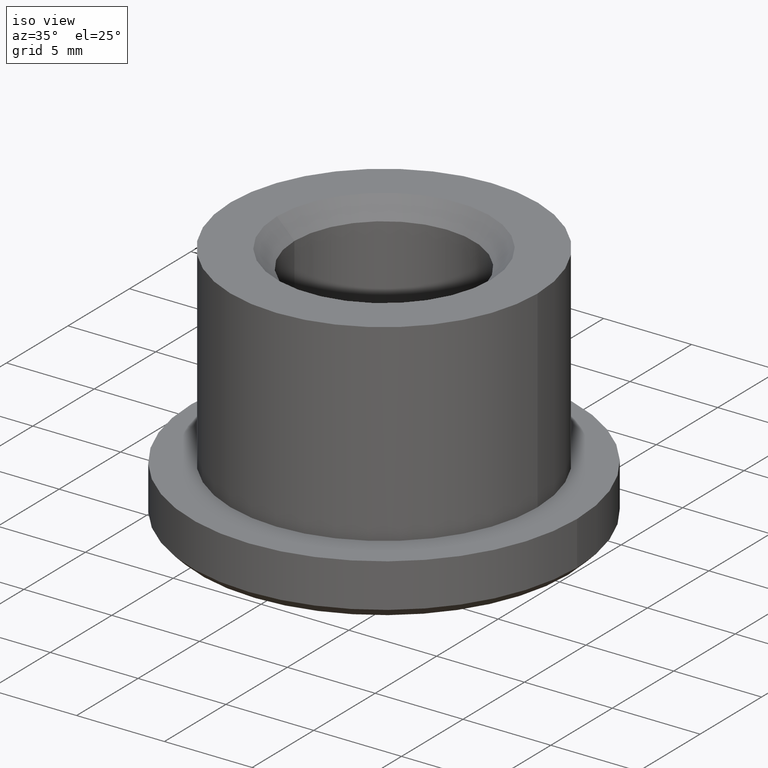
[diagram: clean part render]
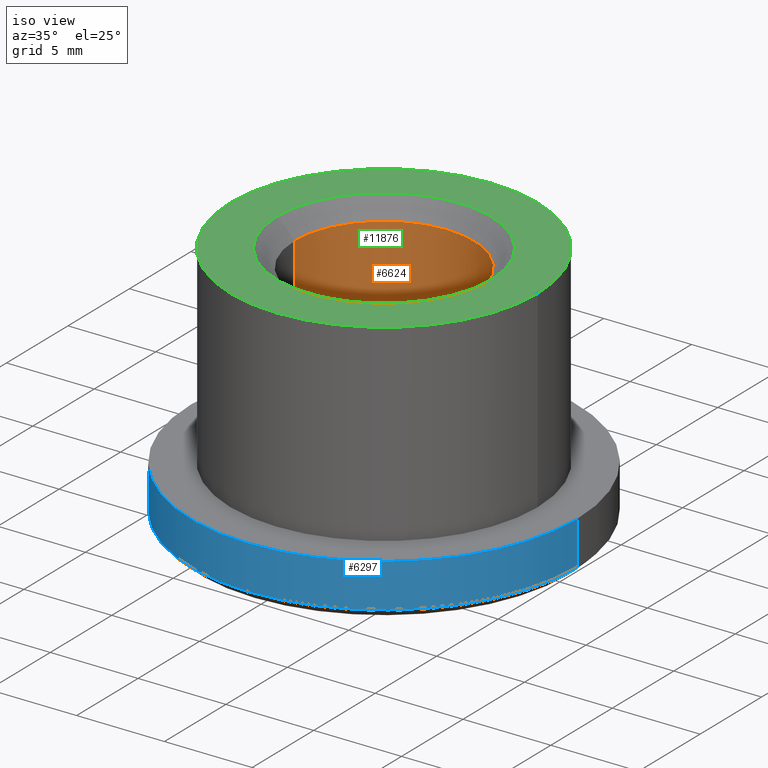
[diagram: same view with three faces highlighted in distinct colors, each labeled with its STEP entity id]
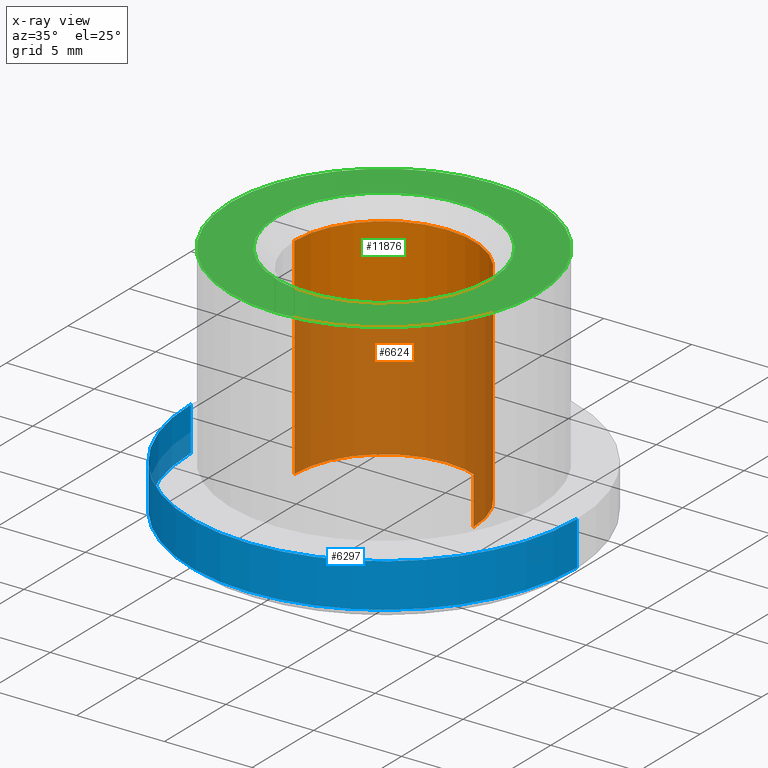
[diagram: x-ray of the same camera — body ghosted, the three highlighted faces saturated]
A machine part, iso view with three faces highlighted in distinct colors.
The next image is the same camera in x-ray (body ghosted, the three faces saturated) — at least one of them is partly hidden behind the body in this view.
Their STEP definitions:

[orange] entity #6624 — the highlighted cylindrical surface (partial cylindrical patch) has radius 5.1 mm, axis along (-0, -0, 1).
#8 = AXIS2_PLACEMENT_3D ( 'NONE', #3379, #6499, #9631 ) ;
#418 = VECTOR ( 'NONE', #11229, 1000.000000000000000 ) ;
#954 = DIRECTION ( 'NONE',  ( 1.000000000000000000, 0.000000000000000000, 0.000000000000000000 ) ) ;
#1050 = AXIS2_PLACEMENT_3D ( 'NONE', #2015, #5959, #9140 ) ;
#1787 = VERTEX_POINT ( 'NONE', #6089 ) ;
#1820 = EDGE_CURVE ( 'NONE', #5583, #11426, #6846, .T. ) ;
#2015 = CARTESIAN_POINT ( 'NONE',  ( 0.000000000000000000, 0.000000000000000000, 6.000000000000015099 ) ) ;
#3190 = CARTESIAN_POINT ( 'NONE',  ( -5.099999999999991651, 6.245698675651490978E-16, 7.000000000000000000 ) ) ;
#3254 = ORIENTED_EDGE ( 'NONE', *, *, #9899, .T. ) ;
#3379 = CARTESIAN_POINT ( 'NONE',  ( 0.000000000000000000, 0.000000000000000000, 7.000000000000000000 ) ) ;
#3734 = VERTEX_POINT ( 'NONE', #5579 ) ;
#3759 = AXIS2_PLACEMENT_3D ( 'NONE', #6178, #7118, #954 ) ;
#4044 = DIRECTION ( 'NONE',  ( -0.000000000000000000, -0.000000000000000000, 1.000000000000000000 ) ) ;
#5579 = CARTESIAN_POINT ( 'NONE',  ( 5.099999999999991651, 0.000000000000000000, -5.999999999999993783 ) ) ;
#5583 = VERTEX_POINT ( 'NONE', #12726 ) ;
#5784 = EDGE_CURVE ( 'NONE', #1787, #3734, #10315, .T. ) ;
#5959 = DIRECTION ( 'NONE',  ( 0.000000000000000000, 0.000000000000000000, 1.000000000000000000 ) ) ;
#6089 = CARTESIAN_POINT ( 'NONE',  ( -5.099999999999991651, 6.245698675651490978E-16, -5.999999999999993783 ) ) ;
#6178 = CARTESIAN_POINT ( 'NONE',  ( 0.000000000000000000, 0.000000000000000000, -5.999999999999993783 ) ) ;
#6464 = CYLINDRICAL_SURFACE ( 'NONE', #8, 5.099999999999991651 ) ;
#6499 = DIRECTION ( 'NONE',  ( -0.000000000000000000, -0.000000000000000000, 1.000000000000000000 ) ) ;
#6624 = ADVANCED_FACE ( 'NONE', ( #9822 ), #6464, .F. ) ;
#6846 = CIRCLE ( 'NONE', #1050, 5.099999999999991651 ) ;
#7052 = EDGE_CURVE ( 'NONE', #1787, #11426, #7261, .T. ) ;
#7118 = DIRECTION ( 'NONE',  ( -0.000000000000000000, -0.000000000000000000, -1.000000000000000000 ) ) ;
#7230 = EDGE_LOOP ( 'NONE', ( #12730, #13189, #3254, #8813 ) ) ;
#7261 = LINE ( 'NONE', #3190, #8074 ) ;
#8074 = VECTOR ( 'NONE', #4044, 1000.000000000000000 ) ;
#8813 = ORIENTED_EDGE ( 'NONE', *, *, #1820, .T. ) ;
#9140 = DIRECTION ( 'NONE',  ( -1.000000000000000000, 0.000000000000000000, 0.000000000000000000 ) ) ;
#9252 = CARTESIAN_POINT ( 'NONE',  ( -5.099999999999991651, 6.245698675651490978E-16, 6.000000000000015099 ) ) ;
#9631 = DIRECTION ( 'NONE',  ( 1.000000000000000000, 0.000000000000000000, 0.000000000000000000 ) ) ;
#9822 = FACE_OUTER_BOUND ( 'NONE', #7230, .T. ) ;
#9899 = EDGE_CURVE ( 'NONE', #3734, #5583, #12210, .T. ) ;
#10209 = CARTESIAN_POINT ( 'NONE',  ( 5.099999999999991651, 0.000000000000000000, 7.000000000000000000 ) ) ;
#10315 = CIRCLE ( 'NONE', #3759, 5.099999999999991651 ) ;
#11229 = DIRECTION ( 'NONE',  ( -0.000000000000000000, -0.000000000000000000, 1.000000000000000000 ) ) ;
#11426 = VERTEX_POINT ( 'NONE', #9252 ) ;
#12210 = LINE ( 'NONE', #10209, #418 ) ;
#12726 = CARTESIAN_POINT ( 'NONE',  ( 5.099999999999991651, 0.000000000000000000, 6.000000000000015099 ) ) ;
#12730 = ORIENTED_EDGE ( 'NONE', *, *, #7052, .F. ) ;
#13189 = ORIENTED_EDGE ( 'NONE', *, *, #5784, .T. ) ;

[blue] entity #6297 — the highlighted cylindrical surface (partial cylindrical patch) has radius 11 mm, axis along (-0, -0, 1).
#979 = VERTEX_POINT ( 'NONE', #8013 ) ;
#1070 = LINE ( 'NONE', #3976, #10554 ) ;
#1074 = DIRECTION ( 'NONE',  ( -0.000000000000000000, -0.000000000000000000, 1.000000000000000000 ) ) ;
#1107 = EDGE_CURVE ( 'NONE', #1610, #11785, #1070, .T. ) ;
#1194 = DIRECTION ( 'NONE',  ( 1.000000000000000000, 0.000000000000000000, 0.000000000000000000 ) ) ;
#1381 = CIRCLE ( 'NONE', #9742, 11.00000000000000000 ) ;
#1610 = VERTEX_POINT ( 'NONE', #7614 ) ;
#2309 = FACE_OUTER_BOUND ( 'NONE', #9588, .T. ) ;
#2647 = DIRECTION ( 'NONE',  ( -0.000000000000000000, -0.000000000000000000, 1.000000000000000000 ) ) ;
#2879 = ORIENTED_EDGE ( 'NONE', *, *, #12598, .T. ) ;
#3012 = VECTOR ( 'NONE', #7815, 1000.000000000000000 ) ;
#3133 = AXIS2_PLACEMENT_3D ( 'NONE', #7235, #1074, #12331 ) ;
#3328 = AXIS2_PLACEMENT_3D ( 'NONE', #7404, #8263, #1194 ) ;
#3972 = ORIENTED_EDGE ( 'NONE', *, *, #1107, .F. ) ;
#3976 = CARTESIAN_POINT ( 'NONE',  ( -11.00000000000000000, 1.347111479062088405E-15, 7.000000000000000000 ) ) ;
#5129 = ORIENTED_EDGE ( 'NONE', *, *, #11976, .T. ) ;
#6075 = DIRECTION ( 'NONE',  ( -0.000000000000000000, -0.000000000000000000, 1.000000000000000000 ) ) ;
#6291 = ORIENTED_EDGE ( 'NONE', *, *, #8864, .F. ) ;
#6297 = ADVANCED_FACE ( 'NONE', ( #2309 ), #9509, .T. ) ;
#7235 = CARTESIAN_POINT ( 'NONE',  ( 0.000000000000000000, 0.000000000000000000, -4.000000000000000888 ) ) ;
#7404 = CARTESIAN_POINT ( 'NONE',  ( 0.000000000000000000, 0.000000000000000000, 7.000000000000000000 ) ) ;
#7614 = CARTESIAN_POINT ( 'NONE',  ( -11.00000000000000000, 1.347111479062088405E-15, -6.499999999999998224 ) ) ;
#7705 = CARTESIAN_POINT ( 'NONE',  ( 0.000000000000000000, 0.000000000000000000, -6.499999999999998224 ) ) ;
#7815 = DIRECTION ( 'NONE',  ( -0.000000000000000000, -0.000000000000000000, 1.000000000000000000 ) ) ;
#8013 = CARTESIAN_POINT ( 'NONE',  ( 11.00000000000000000, 0.000000000000000000, -4.000000000000000888 ) ) ;
#8087 = CARTESIAN_POINT ( 'NONE',  ( -11.00000000000000000, 1.347111479062088405E-15, -4.000000000000000888 ) ) ;
#8263 = DIRECTION ( 'NONE',  ( -0.000000000000000000, -0.000000000000000000, 1.000000000000000000 ) ) ;
#8864 = EDGE_CURVE ( 'NONE', #11785, #979, #9627, .T. ) ;
#9509 = CYLINDRICAL_SURFACE ( 'NONE', #3328, 11.00000000000000000 ) ;
#9588 = EDGE_LOOP ( 'NONE', ( #3972, #5129, #2879, #6291 ) ) ;
#9627 = CIRCLE ( 'NONE', #3133, 11.00000000000000000 ) ;
#9742 = AXIS2_PLACEMENT_3D ( 'NONE', #7705, #2647, #11800 ) ;
#10554 = VECTOR ( 'NONE', #6075, 1000.000000000000000 ) ;
#10914 = CARTESIAN_POINT ( 'NONE',  ( 11.00000000000000000, 0.000000000000000000, 7.000000000000000000 ) ) ;
#11785 = VERTEX_POINT ( 'NONE', #8087 ) ;
#11800 = DIRECTION ( 'NONE',  ( 1.000000000000000000, 0.000000000000000000, 0.000000000000000000 ) ) ;
#11976 = EDGE_CURVE ( 'NONE', #1610, #13025, #1381, .T. ) ;
#11995 = CARTESIAN_POINT ( 'NONE',  ( 11.00000000000000000, 0.000000000000000000, -6.499999999999998224 ) ) ;
#12331 = DIRECTION ( 'NONE',  ( 1.000000000000000000, 0.000000000000000000, 0.000000000000000000 ) ) ;
#12598 = EDGE_CURVE ( 'NONE', #13025, #979, #12790, .T. ) ;
#12790 = LINE ( 'NONE', #10914, #3012 ) ;
#13025 = VERTEX_POINT ( 'NONE', #11995 ) ;

[green] entity #11876 — the highlighted planar face has unit normal (0, 0, -1).
#362 = CARTESIAN_POINT ( 'NONE',  ( 0.000000000000000000, 0.000000000000000000, 7.000000000000000000 ) ) ;
#549 = CARTESIAN_POINT ( 'NONE',  ( -6.099999999999980105, 7.470345474798829641E-16, 7.000000000000000000 ) ) ;
#554 = FACE_OUTER_BOUND ( 'NONE', #4388, .T. ) ;
#1156 = EDGE_CURVE ( 'NONE', #2914, #11492, #9911, .T. ) ;
#1949 = AXIS2_PLACEMENT_3D ( 'NONE', #11552, #5401, #4326 ) ;
#2452 = VERTEX_POINT ( 'NONE', #549 ) ;
#2610 = AXIS2_PLACEMENT_3D ( 'NONE', #362, #11781, #8746 ) ;
#2627 = VERTEX_POINT ( 'NONE', #9965 ) ;
#2914 = VERTEX_POINT ( 'NONE', #9996 ) ;
#3026 = CARTESIAN_POINT ( 'NONE',  ( 0.000000000000000000, 0.000000000000000000, 7.000000000000000000 ) ) ;
#3212 = CIRCLE ( 'NONE', #12745, 6.099999999999980105 ) ;
#4268 = PLANE ( 'NONE',  #4622 ) ;
#4326 = DIRECTION ( 'NONE',  ( 1.000000000000000000, 0.000000000000000000, 0.000000000000000000 ) ) ;
#4388 = EDGE_LOOP ( 'NONE', ( #11520, #7690 ) ) ;
#4516 = AXIS2_PLACEMENT_3D ( 'NONE', #7283, #11301, #11381 ) ;
#4622 = AXIS2_PLACEMENT_3D ( 'NONE', #10210, #11284, #5138 ) ;
#5138 = DIRECTION ( 'NONE',  ( -1.000000000000000000, 0.000000000000000000, -0.000000000000000000 ) ) ;
#5401 = DIRECTION ( 'NONE',  ( -0.000000000000000000, -0.000000000000000000, 1.000000000000000000 ) ) ;
#7283 = CARTESIAN_POINT ( 'NONE',  ( 0.000000000000000000, 0.000000000000000000, 7.000000000000000000 ) ) ;
#7678 = CIRCLE ( 'NONE', #2610, 6.099999999999980105 ) ;
#7690 = ORIENTED_EDGE ( 'NONE', *, *, #12819, .T. ) ;
#8478 = CARTESIAN_POINT ( 'NONE',  ( -8.750000000000000000, 1.071565949253934124E-15, 7.000000000000000000 ) ) ;
#8746 = DIRECTION ( 'NONE',  ( -1.000000000000000000, 0.000000000000000000, 0.000000000000000000 ) ) ;
#9203 = DIRECTION ( 'NONE',  ( -1.000000000000000000, 0.000000000000000000, 0.000000000000000000 ) ) ;
#9831 = ORIENTED_EDGE ( 'NONE', *, *, #10527, .T. ) ;
#9901 = FACE_BOUND ( 'NONE', #11752, .T. ) ;
#9911 = CIRCLE ( 'NONE', #4516, 8.750000000000000000 ) ;
#9965 = CARTESIAN_POINT ( 'NONE',  ( 6.099999999999980105, 0.000000000000000000, 7.000000000000000000 ) ) ;
#9996 = CARTESIAN_POINT ( 'NONE',  ( 8.750000000000000000, 0.000000000000000000, 7.000000000000000000 ) ) ;
#10210 = CARTESIAN_POINT ( 'NONE',  ( 0.000000000000000000, 4.999999999999999112, 7.000000000000000000 ) ) ;
#10527 = EDGE_CURVE ( 'NONE', #2627, #2452, #7678, .T. ) ;
#10867 = EDGE_CURVE ( 'NONE', #2452, #2627, #3212, .T. ) ;
#11284 = DIRECTION ( 'NONE',  ( 0.000000000000000000, 0.000000000000000000, -1.000000000000000000 ) ) ;
#11301 = DIRECTION ( 'NONE',  ( -0.000000000000000000, -0.000000000000000000, 1.000000000000000000 ) ) ;
#11381 = DIRECTION ( 'NONE',  ( 1.000000000000000000, 0.000000000000000000, 0.000000000000000000 ) ) ;
#11492 = VERTEX_POINT ( 'NONE', #8478 ) ;
#11520 = ORIENTED_EDGE ( 'NONE', *, *, #1156, .T. ) ;
#11552 = CARTESIAN_POINT ( 'NONE',  ( 0.000000000000000000, 0.000000000000000000, 7.000000000000000000 ) ) ;
#11752 = EDGE_LOOP ( 'NONE', ( #9831, #12076 ) ) ;
#11781 = DIRECTION ( 'NONE',  ( 0.000000000000000000, 0.000000000000000000, -1.000000000000000000 ) ) ;
#11876 = ADVANCED_FACE ( 'NONE', ( #9901, #554 ), #4268, .F. ) ;
#12003 = CIRCLE ( 'NONE', #1949, 8.750000000000000000 ) ;
#12076 = ORIENTED_EDGE ( 'NONE', *, *, #10867, .T. ) ;
#12228 = DIRECTION ( 'NONE',  ( 0.000000000000000000, 0.000000000000000000, -1.000000000000000000 ) ) ;
#12745 = AXIS2_PLACEMENT_3D ( 'NONE', #3026, #12228, #9203 ) ;
#12819 = EDGE_CURVE ( 'NONE', #11492, #2914, #12003, .T. ) ;